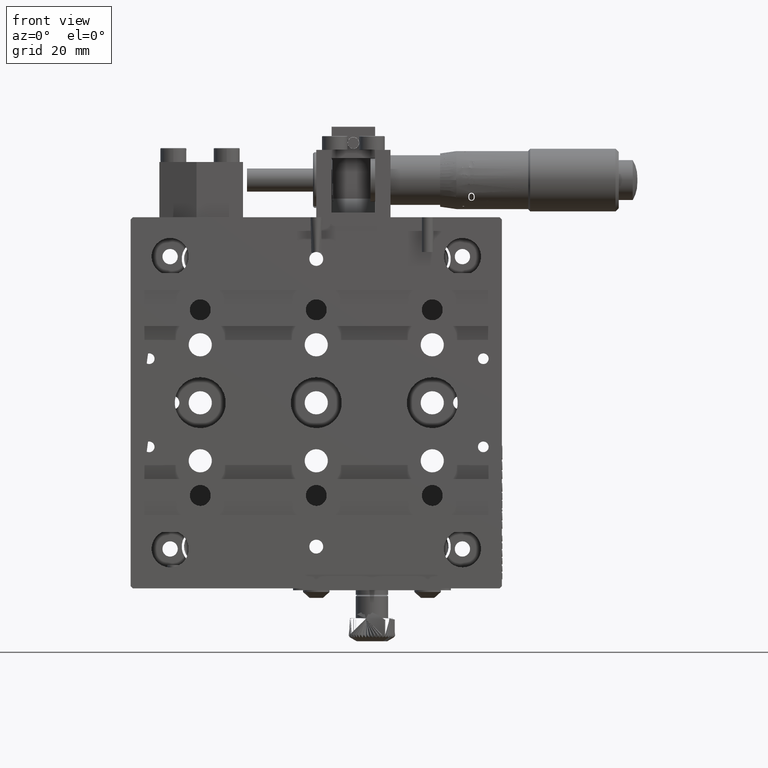
[diagram: clean part render]
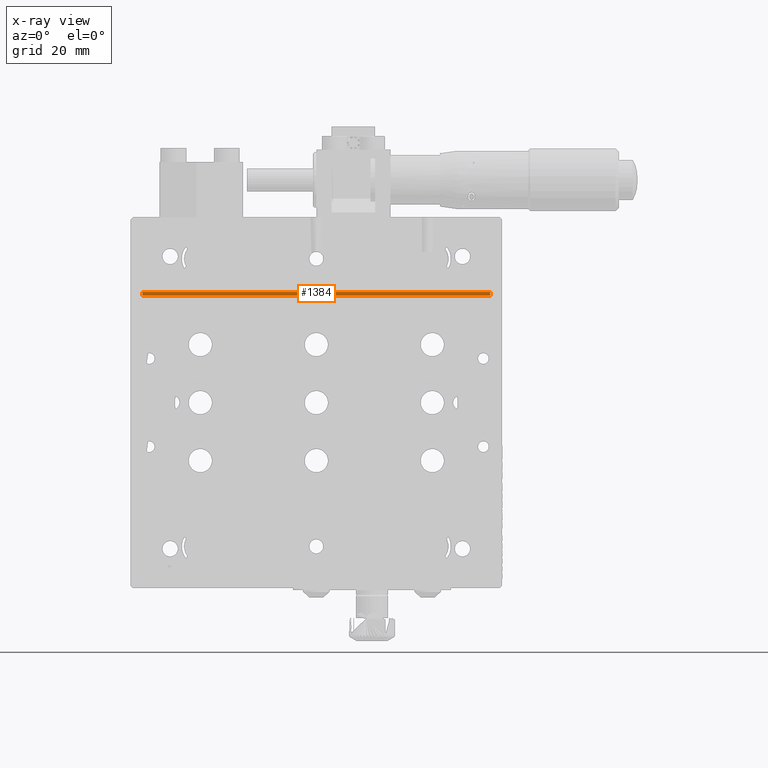
[diagram: x-ray — body ghosted, one internal face saturated and labeled with its STEP entity id]
A machine part, front view, then the same camera in x-ray: the body is ghosted and one INTERNAL B-rep face — a face not visible from any outside direction — is saturated and labeled: STEP entity #1384.
In plain terms, the highlighted planar face has unit normal (-0, -1, 0).
Its self-contained STEP definition (entity closure, byte-faithful):
#77 = VERTEX_POINT ( 'NONE', #60946 ) ;
#1384 = ADVANCED_FACE ( 'NONE', ( #27114 ), #50321, .T. ) ;
#2966 = EDGE_CURVE ( 'NONE', #24405, #77, #37075, .T. ) ;
#4511 = VERTEX_POINT ( 'NONE', #36096 ) ;
#6421 = CARTESIAN_POINT ( 'NONE',  ( -37.50000000000000700, 13.00000000000000500, 23.87849999999999900 ) ) ;
#8031 = VECTOR ( 'NONE', #32514, 1000.000000000000000 ) ;
#13929 = EDGE_CURVE ( 'NONE', #59578, #77, #35964, .T. ) ;
#17184 = CARTESIAN_POINT ( 'NONE',  ( -37.50000000000000700, 13.00000000000000700, 23.87849999999999900 ) ) ;
#20852 = ORIENTED_EDGE ( 'NONE', *, *, #2966, .F. ) ;
#21250 = EDGE_LOOP ( 'NONE', ( #20852, #50279, #39176, #45434 ) ) ;
#22151 = DIRECTION ( 'NONE',  ( -1.044310928757831500E-036, -5.586808922214534800E-019, -1.000000000000000000 ) ) ;
#24405 = VERTEX_POINT ( 'NONE', #6421 ) ;
#27114 = FACE_OUTER_BOUND ( 'NONE', #21250, .T. ) ;
#31306 = CARTESIAN_POINT ( 'NONE',  ( -37.50000000000000700, 13.00000000000000700, 23.09999999999999800 ) ) ;
#32514 = DIRECTION ( 'NONE',  ( 1.044310928757831500E-036, 5.586808922214534800E-019, 1.000000000000000000 ) ) ;
#32735 = CARTESIAN_POINT ( 'NONE',  ( 37.50000000000005000, 13.00000000000000700, 23.87849999999999900 ) ) ;
#35537 = VECTOR ( 'NONE', #48091, 1000.000000000000000 ) ;
#35964 = LINE ( 'NONE', #32735, #8031 ) ;
#36096 = CARTESIAN_POINT ( 'NONE',  ( -37.50000000000000700, 13.00000000000000700, 23.09999999999999800 ) ) ;
#37075 = LINE ( 'NONE', #43508, #35537 ) ;
#38578 = VECTOR ( 'NONE', #60367, 1000.000000000000000 ) ;
#39015 = LINE ( 'NONE', #17184, #63147 ) ;
#39176 = ORIENTED_EDGE ( 'NONE', *, *, #53156, .T. ) ;
#43508 = CARTESIAN_POINT ( 'NONE',  ( -37.50000000000000700, 13.00000000000000400, 23.87850000000000300 ) ) ;
#45434 = ORIENTED_EDGE ( 'NONE', *, *, #13929, .T. ) ;
#46756 = CARTESIAN_POINT ( 'NONE',  ( -37.50000000000000700, 13.00000000000000700, 23.87849999999999900 ) ) ;
#48091 = DIRECTION ( 'NONE',  ( 1.000000000000000000, -1.828185678040439500E-017, 1.828185678040431100E-017 ) ) ;
#49286 = AXIS2_PLACEMENT_3D ( 'NONE', #46756, #62919, #55520 ) ;
#50279 = ORIENTED_EDGE ( 'NONE', *, *, #57285, .T. ) ;
#50321 = PLANE ( 'NONE',  #49286 ) ;
#51426 = LINE ( 'NONE', #31306, #38578 ) ;
#53156 = EDGE_CURVE ( 'NONE', #4511, #59578, #51426, .T. ) ;
#55263 = CARTESIAN_POINT ( 'NONE',  ( 37.50000000000005000, 13.00000000000000700, 23.09999999999999400 ) ) ;
#55520 = DIRECTION ( 'NONE',  ( 1.000000000000000000, -1.869244041272635700E-018, 0.0000000000000000000 ) ) ;
#57285 = EDGE_CURVE ( 'NONE', #24405, #4511, #39015, .T. ) ;
#59578 = VERTEX_POINT ( 'NONE', #55263 ) ;
#60367 = DIRECTION ( 'NONE',  ( 1.000000000000000000, -1.869244041272635700E-018, 0.0000000000000000000 ) ) ;
#60946 = CARTESIAN_POINT ( 'NONE',  ( 37.50000000000005000, 13.00000000000000700, 23.87850000000000600 ) ) ;
#62919 = DIRECTION ( 'NONE',  ( -1.869244041272635700E-018, -1.000000000000000000, 5.586808922214534800E-019 ) ) ;
#63147 = VECTOR ( 'NONE', #22151, 1000.000000000000000 ) ;